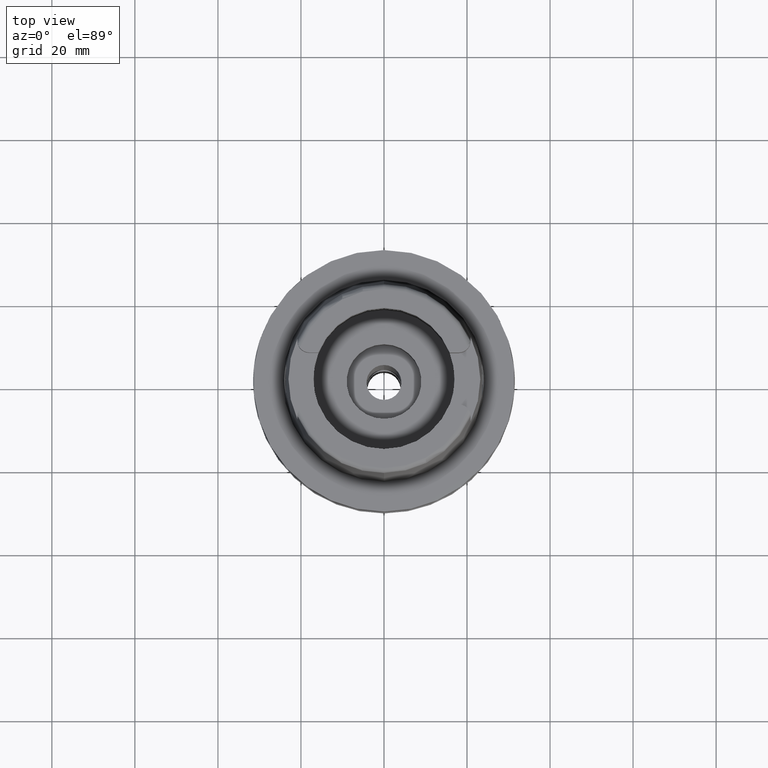
[diagram: clean part render]
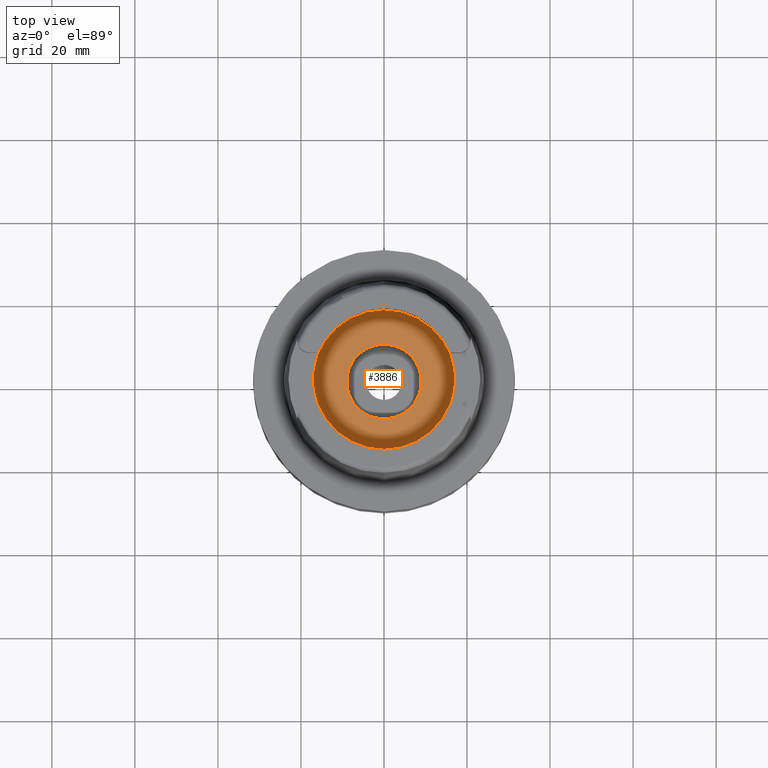
[diagram: same view with one face highlighted and labeled with its STEP entity id]
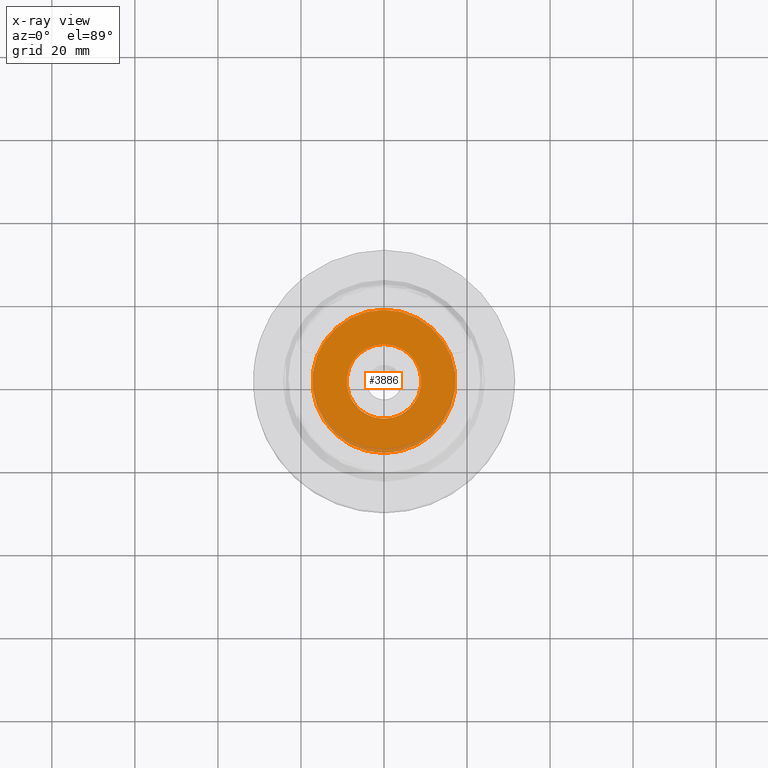
[diagram: x-ray of the same camera — body ghosted, the highlighted face saturated]
A machine part, top view. The second image highlights one B-rep face of the part: STEP entity #3886.
The next image is the same camera in x-ray: the body ghosted, the highlighted face saturated — about 6% of this face is hidden behind the body in this view.
In plain terms, the highlighted planar face has unit normal (0, 0, 1).
Its self-contained STEP definition (entity closure, byte-faithful):
#1887=CARTESIAN_POINT('',(0.E0,0.E0,-9.95E0));
#1888=DIRECTION('',(0.E0,0.E0,-1.E0));
#1889=DIRECTION('',(0.E0,-1.E0,0.E0));
#1890=AXIS2_PLACEMENT_3D('',#1887,#1888,#1889);
#1895=CARTESIAN_POINT('',(0.E0,0.E0,-9.95E0));
#1896=DIRECTION('',(0.E0,0.E0,-1.E0));
#1897=DIRECTION('',(0.E0,1.E0,0.E0));
#1898=AXIS2_PLACEMENT_3D('',#1895,#1896,#1897);
#1903=CARTESIAN_POINT('',(0.E0,0.E0,-9.95E0));
#1904=DIRECTION('',(0.E0,0.E0,1.E0));
#1905=DIRECTION('',(0.E0,-1.E0,0.E0));
#1906=AXIS2_PLACEMENT_3D('',#1903,#1904,#1905);
#1911=CARTESIAN_POINT('',(0.E0,0.E0,-9.95E0));
#1912=DIRECTION('',(0.E0,0.E0,1.E0));
#1913=DIRECTION('',(0.E0,1.E0,0.E0));
#1914=AXIS2_PLACEMENT_3D('',#1911,#1912,#1913);
#2331=CARTESIAN_POINT('',(0.E0,1.725E1,-9.95E0));
#2332=VERTEX_POINT('',#2331);
#2333=CARTESIAN_POINT('',(0.E0,-1.725E1,-9.95E0));
#2334=VERTEX_POINT('',#2333);
#2335=CARTESIAN_POINT('',(0.E0,-9.E0,-9.95E0));
#2336=CARTESIAN_POINT('',(0.E0,9.E0,-9.95E0));
#2337=VERTEX_POINT('',#2335);
#2338=VERTEX_POINT('',#2336);
#3871=CARTESIAN_POINT('',(0.E0,0.E0,-9.95E0));
#3872=DIRECTION('',(0.E0,0.E0,1.E0));
#3873=DIRECTION('',(0.E0,1.E0,0.E0));
#3874=AXIS2_PLACEMENT_3D('',#3871,#3872,#3873);
#3875=PLANE('',#3874);
#3877=ORIENTED_EDGE('',*,*,#3876,.T.);
#3879=ORIENTED_EDGE('',*,*,#3878,.T.);
#3880=EDGE_LOOP('',(#3877,#3879));
#3881=FACE_OUTER_BOUND('',#3880,.F.);
#3882=ORIENTED_EDGE('',*,*,#3864,.T.);
#3883=ORIENTED_EDGE('',*,*,#3853,.T.);
#3884=EDGE_LOOP('',(#3882,#3883));
#3885=FACE_BOUND('',#3884,.F.);
#1891=CIRCLE('',#1890,1.725E1);
#1899=CIRCLE('',#1898,1.725E1);
#1907=CIRCLE('',#1906,9.E0);
#1915=CIRCLE('',#1914,9.E0);
#3853=EDGE_CURVE('',#2338,#2337,#1915,.T.);
#3864=EDGE_CURVE('',#2337,#2338,#1907,.T.);
#3876=EDGE_CURVE('',#2334,#2332,#1891,.T.);
#3878=EDGE_CURVE('',#2332,#2334,#1899,.T.);
#3886=ADVANCED_FACE('',(#3881,#3885),#3875,.T.);